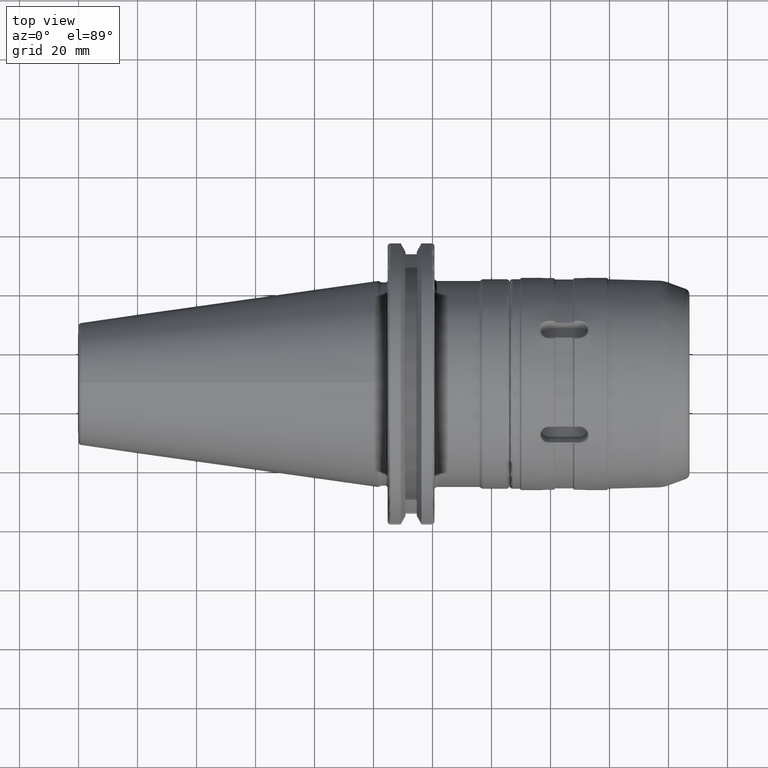
[diagram: clean part render]
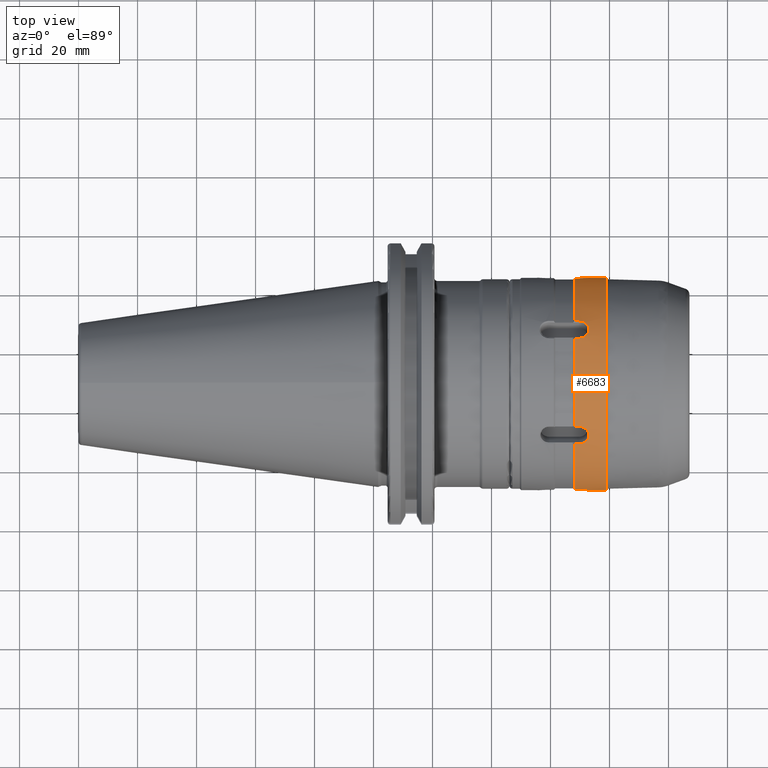
[diagram: same view with one face highlighted and labeled with its STEP entity id]
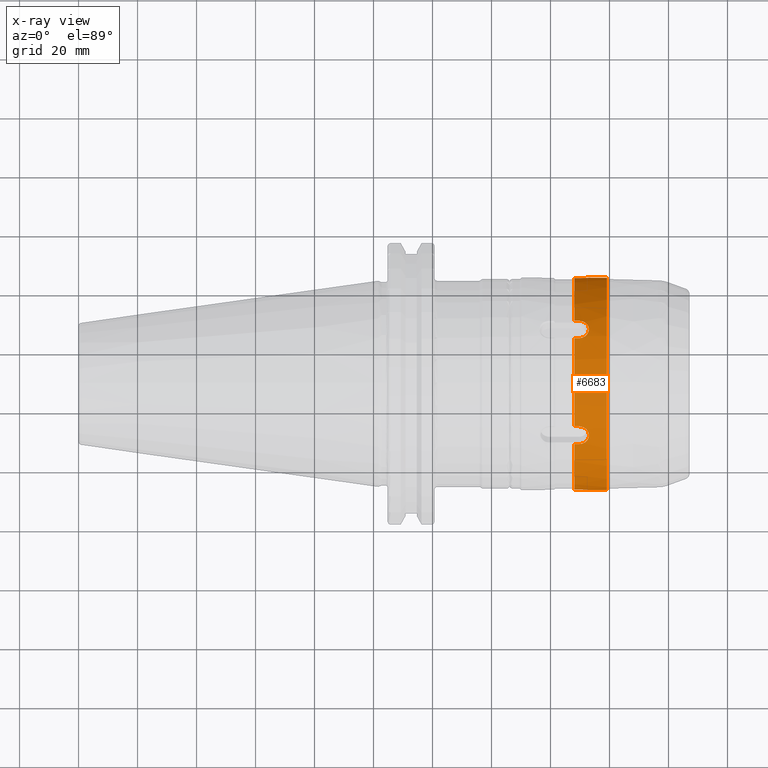
[diagram: x-ray of the same camera — body ghosted, the highlighted face saturated]
A machine part, top view. The second image highlights one B-rep face of the part: STEP entity #6683.
The next image is the same camera in x-ray: the body ghosted, the highlighted face saturated — about 0% of this face is hidden behind the body in this view.
In plain terms, the highlighted cylindrical surface (partial cylindrical patch) has radius 36 mm, axis along (1, 0, 0).
Its self-contained STEP definition (entity closure, byte-faithful):
#3341=CARTESIAN_POINT('',(-3.9E1,-3.583544007414E1,3.438202247191E0));
#3360=CARTESIAN_POINT('',(-3.9E1,-2.089529052649E1,2.931530033641E1));
#3370=CARTESIAN_POINT('',(-3.9E1,-1.494014954765E1,3.275350258360E1));
#3389=CARTESIAN_POINT('',(-3.9E1,1.494014954765E1,3.275350258360E1));
#3399=CARTESIAN_POINT('',(-3.9E1,2.089529052649E1,2.931530033641E1));
#3418=CARTESIAN_POINT('',(-3.9E1,3.583544007414E1,3.438202247191E0));
#3701=CARTESIAN_POINT('',(-3.409999999879E1,-3.600000000026E1,
-2.332073062840E-8));
#3712=DIRECTION('',(-1.E0,-5.594068014945E-11,-3.985709938158E-9));
#3713=VECTOR('',#3712,6.099999998876E0);
#3714=CARTESIAN_POINT('',(-2.799999999992E1,-3.599999999992E1,
9.920999898894E-10));
#3715=LINE('',#3714,#3713);
#3721=DIRECTION('',(-1.E0,5.594068014945E-11,3.985709127791E-9));
#3722=VECTOR('',#3721,6.099999998876E0);
#3723=CARTESIAN_POINT('',(-2.799999999992E1,3.599999999992E1,
-9.920990936701E-10));
#3724=LINE('',#3723,#3722);
#4071=CARTESIAN_POINT('',(-3.749999960009E1,-3.583544007376E1,
3.438202248979E0));
#4072=CARTESIAN_POINT('',(-3.725058013653E1,-3.583520009452E1,
3.439317623033E0));
#4073=CARTESIAN_POINT('',(-3.674591778270E1,-3.584098800894E1,
3.381762246659E0));
#4074=CARTESIAN_POINT('',(-3.601846690407E1,-3.586442330985E1,
3.127064333341E0));
#4075=CARTESIAN_POINT('',(-3.536756205795E1,-3.589856183677E1,
2.714995036617E0));
#4076=CARTESIAN_POINT('',(-3.482103603117E1,-3.593658748090E1,
2.164821410409E0));
#4077=CARTESIAN_POINT('',(-3.440648234036E1,-3.597122870779E1,
1.497392469265E0));
#4078=CARTESIAN_POINT('',(-3.415455063718E1,-3.599459841868E1,
7.568749544642E-1));
#4079=CARTESIAN_POINT('',(-3.409883852886E1,-3.600025486796E1,
2.489266974210E-1));
#4080=CARTESIAN_POINT('',(-3.409999999879E1,-3.600000000026E1,
-2.332073062840E-8));
#4082=DIRECTION('',(1.E0,2.565200700743E-10,1.192283287308E-9));
#4083=VECTOR('',#4082,1.500000399909E0);
#4084=CARTESIAN_POINT('',(-3.9E1,-3.583544007414E1,3.438202247191E0));
#4085=LINE('',#4084,#4083);
#4086=CARTESIAN_POINT('',(-3.9E1,0.E0,0.E0));
#4087=DIRECTION('',(-1.E0,0.E0,0.E0));
#4088=DIRECTION('',(0.E0,-9.954288909484E-1,9.550561797753E-2));
#4089=AXIS2_PLACEMENT_3D('',#4086,#4087,#4088);
#4091=DIRECTION('',(-1.E0,3.522257214330E-9,3.157573793164E-9));
#4092=VECTOR('',#4091,1.500001108444E0);
#4093=CARTESIAN_POINT('',(-3.749999889156E1,-2.089529053177E1,
2.931530033167E1));
#4094=LINE('',#4093,#4092);
#4095=CARTESIAN_POINT('',(-3.749999958524E1,-1.494014954525E1,
3.275350258440E1));
#4096=CARTESIAN_POINT('',(-3.723288758001E1,-1.493860118051E1,
3.275402196167E1));
#4097=CARTESIAN_POINT('',(-3.669101734377E1,-1.499959696291E1,
3.272657895285E1));
#4098=CARTESIAN_POINT('',(-3.591438463741E1,-1.526735050768E1,
3.260298543852E1));
#4099=CARTESIAN_POINT('',(-3.523302603535E1,-1.569534627505E1,
3.239997917948E1));
#4100=CARTESIAN_POINT('',(-3.467839083946E1,-1.626014938384E1,
3.212114219119E1));
#4101=CARTESIAN_POINT('',(-3.429024298763E1,-1.692272081844E1,
3.177781273605E1));
#4102=CARTESIAN_POINT('',(-3.409082506366E1,-1.764121761583E1,
3.138506326453E1));
#4103=CARTESIAN_POINT('',(-3.409253884096E1,-1.837119084591E1,
3.096342093899E1));
#4104=CARTESIAN_POINT('',(-3.429469020510E1,-1.906938797444E1,
3.053794865662E1));
#4105=CARTESIAN_POINT('',(-3.468695023755E1,-1.969773029424E1,
3.013566193252E1));
#4106=CARTESIAN_POINT('',(-3.524065454152E1,-2.021725461869E1,
2.978866284247E1));
#4107=CARTESIAN_POINT('',(-3.592950624704E1,-2.060824648112E1,
2.951858056512E1));
#4108=CARTESIAN_POINT('',(-3.670599426427E1,-2.084470673089E1,
2.935156847238E1));
#4109=CARTESIAN_POINT('',(-3.723971646802E1,-2.089653105227E1,
2.931418823222E1));
#4110=CARTESIAN_POINT('',(-3.749999889156E1,-2.089529053177E1,
2.931530033167E1));
#4112=DIRECTION('',(1.E0,1.602891598106E-9,5.376770133805E-10));
#4113=VECTOR('',#4112,1.500000414763E0);
#4114=CARTESIAN_POINT('',(-3.9E1,-1.494014954765E1,3.275350258360E1));
#4115=LINE('',#4114,#4113);
#4116=CARTESIAN_POINT('',(-3.9E1,0.E0,0.E0));
#4117=DIRECTION('',(-1.E0,0.E0,0.E0));
#4118=DIRECTION('',(0.E0,-4.150041541015E-1,9.098195162110E-1));
#4119=AXIS2_PLACEMENT_3D('',#4116,#4117,#4118);
#4121=DIRECTION('',(-1.E0,6.459934104831E-10,-2.085916397140E-10));
#4122=VECTOR('',#4121,1.500000163578E0);
#4123=CARTESIAN_POINT('',(-3.749999983642E1,1.494014954669E1,3.275350258391E1));
#4124=LINE('',#4123,#4122);
#4125=CARTESIAN_POINT('',(-3.749999928649E1,2.089529052950E1,2.931530033370E1));
#4126=CARTESIAN_POINT('',(-3.723215868556E1,2.089642257146E1,2.931428459482E1));
#4127=CARTESIAN_POINT('',(-3.668982641040E1,2.084203875805E1,2.935347203382E1));
#4128=CARTESIAN_POINT('',(-3.591373580907E1,2.060102548427E1,2.952362507998E1));
#4129=CARTESIAN_POINT('',(-3.523239706172E1,2.021108072637E1,2.979286515158E1));
#4130=CARTESIAN_POINT('',(-3.467795525311E1,1.968710856326E1,3.014262810058E1));
#4131=CARTESIAN_POINT('',(-3.428995145549E1,1.905839386926E1,3.054481239609E1));
#4132=CARTESIAN_POINT('',(-3.409071604909E1,1.835888338324E1,3.097073119356E1));
#4133=CARTESIAN_POINT('',(-3.409264663239E1,1.762874576446E1,3.139205955386E1));
#4134=CARTESIAN_POINT('',(-3.429501811416E1,1.691117882783E1,3.178395590136E1));
#4135=CARTESIAN_POINT('',(-3.468745199510E1,1.624875550729E1,3.212688216290E1));
#4136=CARTESIAN_POINT('',(-3.524128823504E1,1.568855682472E1,3.240325661308E1));
#4137=CARTESIAN_POINT('',(-3.593086142307E1,1.525906543683E1,3.260685945936E1));
#4138=CARTESIAN_POINT('',(-3.670699058244E1,1.499668053989E1,3.272790699883E1));
#4139=CARTESIAN_POINT('',(-3.724006339087E1,1.493860976649E1,3.275399977398E1));
#4140=CARTESIAN_POINT('',(-3.749999983642E1,1.494014954669E1,3.275350258391E1));
#4142=DIRECTION('',(1.E0,2.010579190443E-9,-1.803996093714E-9));
#4143=VECTOR('',#4142,1.500000713506E0);
#4144=CARTESIAN_POINT('',(-3.9E1,2.089529052649E1,2.931530033641E1));
#4145=LINE('',#4144,#4143);
#4146=CARTESIAN_POINT('',(-3.9E1,0.E0,0.E0));
#4147=DIRECTION('',(-1.E0,0.E0,0.E0));
#4148=DIRECTION('',(0.E0,5.804247368469E-1,8.143138982335E-1));
#4149=AXIS2_PLACEMENT_3D('',#4146,#4147,#4148);
#4151=DIRECTION('',(-1.E0,3.968095434566E-10,-1.806651317688E-9));
#4152=VECTOR('',#4151,1.500000577441E0);
#4153=CARTESIAN_POINT('',(-3.749999942256E1,3.583544007355E1,3.438202249901E0));
#4154=LINE('',#4153,#4152);
#4155=CARTESIAN_POINT('',(-3.409999999879E1,3.600000000026E1,
2.332072658138E-8));
#4156=CARTESIAN_POINT('',(-3.409878457567E1,3.600025215646E1,
2.555146509403E-1));
#4157=CARTESIAN_POINT('',(-3.415734892507E1,3.599432574520E1,
7.723529524181E-1));
#4158=CARTESIAN_POINT('',(-3.441506384547E1,3.597046360322E1,1.514948542297E0));
#4159=CARTESIAN_POINT('',(-3.482953001987E1,3.593594858824E1,2.174799460032E0));
#4160=CARTESIAN_POINT('',(-3.537668406919E1,3.589798148560E1,2.722708061375E0));
#4161=CARTESIAN_POINT('',(-3.603444485627E1,3.586371971072E1,3.135020446984E0));
#4162=CARTESIAN_POINT('',(-3.676064461197E1,3.584072587560E1,3.384474215191E0));
#4163=CARTESIAN_POINT('',(-3.725705970554E1,3.583518966515E1,3.439342319149E0));
#4164=CARTESIAN_POINT('',(-3.749999942256E1,3.583544007355E1,3.438202249901E0));
#4166=CARTESIAN_POINT('',(-2.8E1,0.E0,0.E0));
#4167=DIRECTION('',(-1.E0,0.E0,0.E0));
#4168=DIRECTION('',(0.E0,-1.E0,0.E0));
#4169=AXIS2_PLACEMENT_3D('',#4166,#4167,#4168);
#4769=CARTESIAN_POINT('',(-2.8E1,-3.6E1,0.E0));
#4770=CARTESIAN_POINT('',(-2.8E1,3.6E1,0.E0));
#4771=VERTEX_POINT('',#4769);
#4772=VERTEX_POINT('',#4770);
#4983=VERTEX_POINT('',#3701);
#4985=VERTEX_POINT('',#4071);
#4988=VERTEX_POINT('',#3341);
#5001=VERTEX_POINT('',#3360);
#5005=CARTESIAN_POINT('',(-3.749999889156E1,-2.089529053177E1,
2.931530033167E1));
#5006=VERTEX_POINT('',#5005);
#5007=VERTEX_POINT('',#4095);
#5010=VERTEX_POINT('',#3370);
#5021=VERTEX_POINT('',#3389);
#5025=CARTESIAN_POINT('',(-3.749999983642E1,1.494014954669E1,3.275350258391E1));
#5026=VERTEX_POINT('',#5025);
#5027=VERTEX_POINT('',#4125);
#5030=VERTEX_POINT('',#3399);
#5041=VERTEX_POINT('',#3418);
#5045=CARTESIAN_POINT('',(-3.749999942256E1,3.583544007355E1,3.438202249901E0));
#5046=VERTEX_POINT('',#5045);
#5047=VERTEX_POINT('',#4155);
#6651=CARTESIAN_POINT('',(0.E0,0.E0,0.E0));
#6652=DIRECTION('',(1.E0,0.E0,0.E0));
#6653=DIRECTION('',(0.E0,-1.E0,0.E0));
#6654=AXIS2_PLACEMENT_3D('',#6651,#6652,#6653);
#6655=CYLINDRICAL_SURFACE('',#6654,3.6E1);
#6657=ORIENTED_EDGE('',*,*,#6656,.F.);
#6659=ORIENTED_EDGE('',*,*,#6658,.F.);
#6660=ORIENTED_EDGE('',*,*,#5652,.T.);
#6662=ORIENTED_EDGE('',*,*,#6661,.F.);
#6664=ORIENTED_EDGE('',*,*,#6663,.F.);
#6666=ORIENTED_EDGE('',*,*,#6665,.F.);
#6667=ORIENTED_EDGE('',*,*,#5671,.T.);
#6669=ORIENTED_EDGE('',*,*,#6668,.F.);
#6671=ORIENTED_EDGE('',*,*,#6670,.F.);
#6672=ORIENTED_EDGE('',*,*,#5592,.F.);
#6673=ORIENTED_EDGE('',*,*,#5688,.T.);
#6675=ORIENTED_EDGE('',*,*,#6674,.F.);
#6676=ORIENTED_EDGE('',*,*,#6641,.F.);
#6677=ORIENTED_EDGE('',*,*,#5941,.F.);
#6679=ORIENTED_EDGE('',*,*,#6678,.F.);
#6680=ORIENTED_EDGE('',*,*,#5937,.T.);
#6681=EDGE_LOOP('',(#6657,#6659,#6660,#6662,#6664,#6666,#6667,#6669,#6671,#6672,
#6673,#6675,#6676,#6677,#6679,#6680));
#6682=FACE_OUTER_BOUND('',#6681,.F.);
#6683=ADVANCED_FACE('',(#6682),#6655,.T.);
#4081=B_SPLINE_CURVE_WITH_KNOTS('',3,(#4071,#4072,#4073,#4074,#4075,#4076,#4077,
#4078,#4079,#4080),.UNSPECIFIED.,.F.,.F.,(4,1,1,1,1,1,1,4),(0.E0,
1.428569592542E-1,2.857141475595E-1,4.285713358647E-1,5.714285241700E-1,
7.142857124753E-1,8.571429007806E-1,1.E0),.UNSPECIFIED.);
#4090=CIRCLE('',#4089,3.6E1);
#4111=B_SPLINE_CURVE_WITH_KNOTS('',3,(#4095,#4096,#4097,#4098,#4099,#4100,#4101,
#4102,#4103,#4104,#4105,#4106,#4107,#4108,#4109,#4110),.UNSPECIFIED.,.F.,.F.,(4,
1,1,1,1,1,1,1,1,1,1,1,1,4),(0.E0,7.692299186633E-2,1.538461031762E-1,
2.307692144861E-1,3.076923257960E-1,3.846154371058E-1,4.615385484157E-1,
5.384616597256E-1,6.153847710355E-1,6.923078823453E-1,7.692309936552E-1,
8.461541049651E-1,9.230772162750E-1,1.E0),.UNSPECIFIED.);
#4120=CIRCLE('',#4119,3.6E1);
#4141=B_SPLINE_CURVE_WITH_KNOTS('',3,(#4125,#4126,#4127,#4128,#4129,#4130,#4131,
#4132,#4133,#4134,#4135,#4136,#4137,#4138,#4139,#4140),.UNSPECIFIED.,.F.,.F.,(4,
1,1,1,1,1,1,1,1,1,1,1,1,4),(0.E0,7.692289149322E-2,1.538459879028E-1,
2.307690843123E-1,3.076921807218E-1,3.846152771314E-1,4.615383735409E-1,
5.384614699504E-1,6.153845663600E-1,6.923076627695E-1,7.692307591791E-1,
8.461538555886E-1,9.230769519981E-1,1.E0),.UNSPECIFIED.);
#4150=CIRCLE('',#4149,3.6E1);
#4165=B_SPLINE_CURVE_WITH_KNOTS('',3,(#4155,#4156,#4157,#4158,#4159,#4160,#4161,
#4162,#4163,#4164),.UNSPECIFIED.,.F.,.F.,(4,1,1,1,1,1,1,4),(0.E0,
1.428571020732E-1,2.857143083202E-1,4.285715145671E-1,5.714287208140E-1,
7.142859270610E-1,8.571431333079E-1,1.E0),.UNSPECIFIED.);
#4170=CIRCLE('',#4169,3.6E1);
#5592=EDGE_CURVE('',#5030,#5027,#4145,.T.);
#5652=EDGE_CURVE('',#4988,#5001,#4090,.T.);
#5671=EDGE_CURVE('',#5010,#5021,#4120,.T.);
#5688=EDGE_CURVE('',#5030,#5041,#4150,.T.);
#5937=EDGE_CURVE('',#4771,#4983,#3715,.T.);
#5941=EDGE_CURVE('',#4772,#5047,#3724,.T.);
#6641=EDGE_CURVE('',#5047,#5046,#4165,.T.);
#6656=EDGE_CURVE('',#4985,#4983,#4081,.T.);
#6658=EDGE_CURVE('',#4988,#4985,#4085,.T.);
#6661=EDGE_CURVE('',#5006,#5001,#4094,.T.);
#6663=EDGE_CURVE('',#5007,#5006,#4111,.T.);
#6665=EDGE_CURVE('',#5010,#5007,#4115,.T.);
#6668=EDGE_CURVE('',#5026,#5021,#4124,.T.);
#6670=EDGE_CURVE('',#5027,#5026,#4141,.T.);
#6674=EDGE_CURVE('',#5046,#5041,#4154,.T.);
#6678=EDGE_CURVE('',#4771,#4772,#4170,.T.);